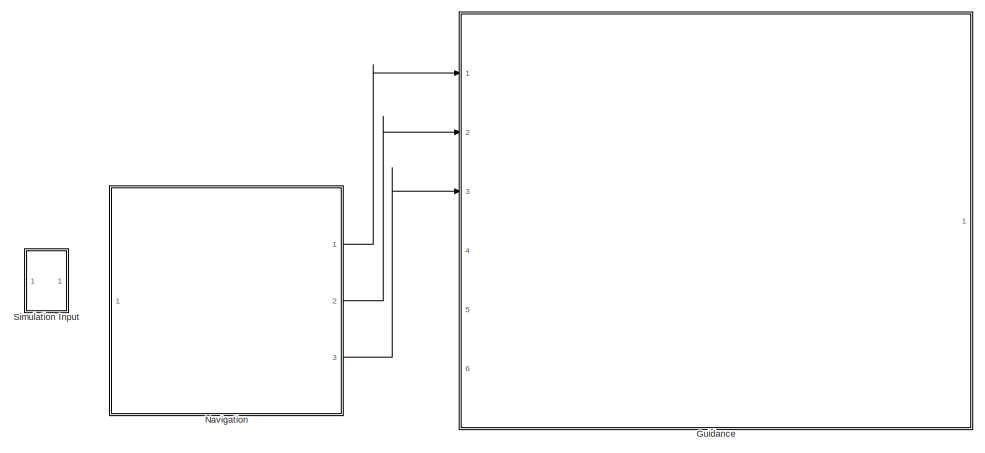
[diagram: root canvas - part 1/2, top left region]
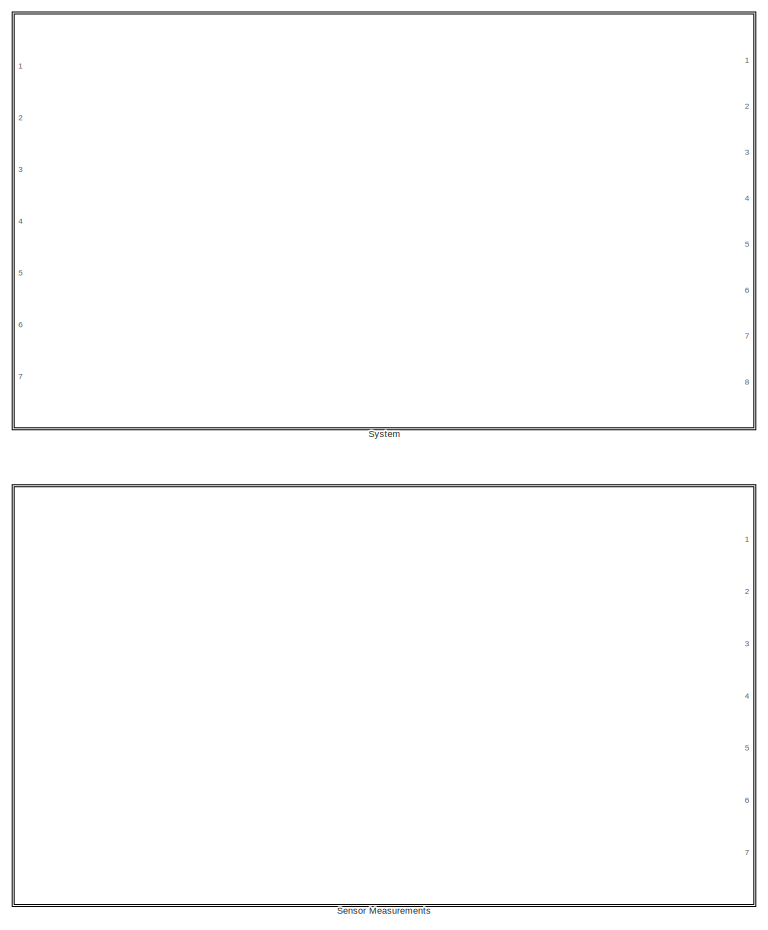
[diagram: root canvas - part 2/2, right side, full height]
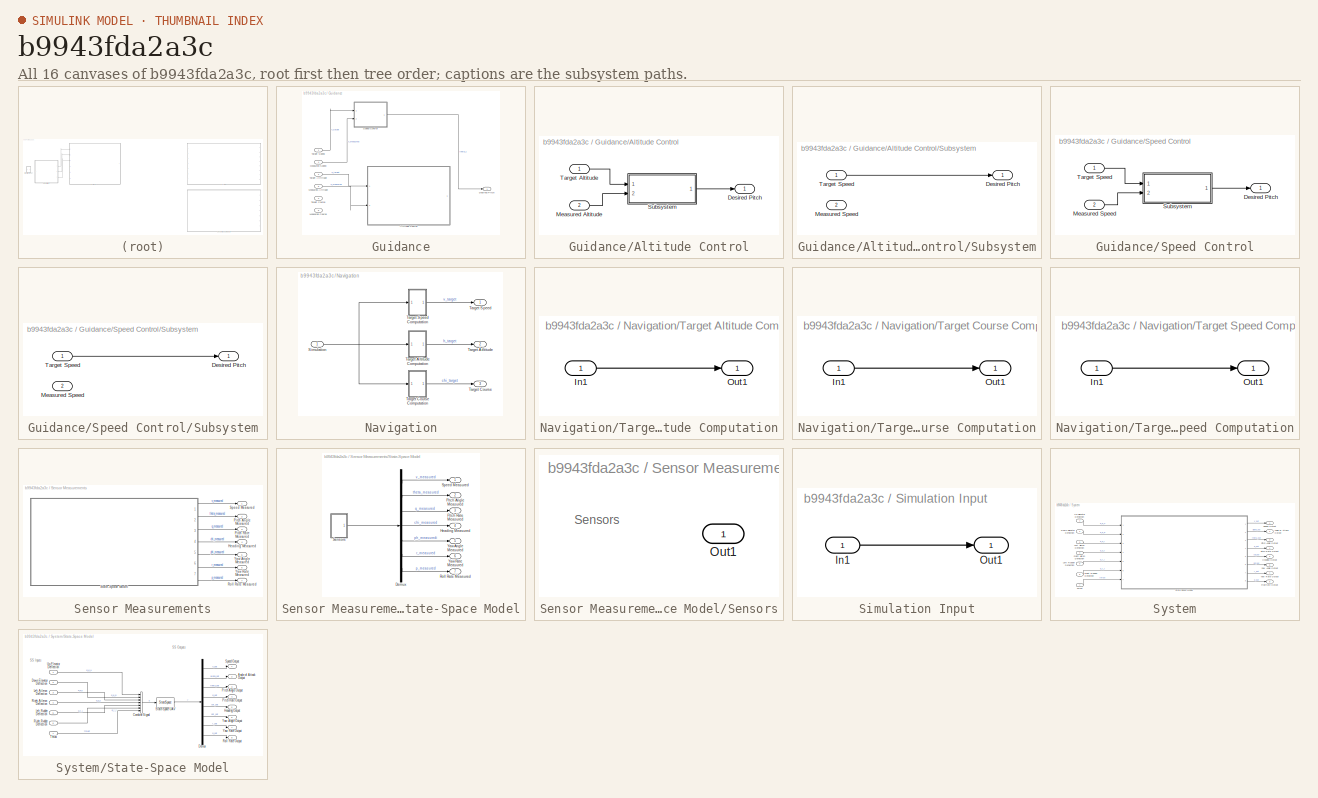
[diagram: thumbnail index - all 16 canvases of the model, root first then tree order]
MODEL slx_b9943fda2a3c
KIND model
CONFIG AbsTol = auto
CONFIG EnableMultiTasking = off
CONFIG FixedStep = auto
CONFIG MaxStep = auto
CONFIG MinStep = auto
CONFIG RelTol = 1e-3
CONFIG SampleTimeConstraint = Unconstrained
CONFIG SolverName = VariableStepAuto
CONFIG StartTime = 0.0
CONFIG StopTime = 10.0
BLOCK [SubSystem] Guidance
  Ports = [6, 1]
  RequestExecContextInheritance = off
BLOCK [SubSystem] Guidance/Altitude Control
  Ports = [2, 1]
  RequestExecContextInheritance = off
BLOCK [Outport] Guidance/Altitude Control/Desired Pitch
BLOCK [Inport] Guidance/Altitude Control/Measured Altitude
  Port = 2
BLOCK [SubSystem] Guidance/Altitude Control/Subsystem
  Ports = [2, 1]
  RequestExecContextInheritance = off
BLOCK [Outport] Guidance/Altitude Control/Subsystem/Desired Pitch
BLOCK [Inport] Guidance/Altitude Control/Subsystem/Measured Speed
  Port = 2
BLOCK [Inport] Guidance/Altitude Control/Subsystem/Target Speed
BLOCK [Inport] Guidance/Altitude Control/Target Altitude
BLOCK [Outport] Guidance/Desired Pitch
BLOCK [Inport] Guidance/Measured Altitude
  Port = 5
BLOCK [Inport] Guidance/Measured Course
  Port = 6
BLOCK [Inport] Guidance/Measured Speed
  Port = 4
BLOCK [SubSystem] Guidance/Speed Control
  Ports = [2, 1]
  RequestExecContextInheritance = off
BLOCK [Outport] Guidance/Speed Control/Desired Pitch
BLOCK [Inport] Guidance/Speed Control/Measured Speed
  Port = 2
BLOCK [SubSystem] Guidance/Speed Control/Subsystem
  Ports = [2, 1]
  RequestExecContextInheritance = off
BLOCK [Outport] Guidance/Speed Control/Subsystem/Desired Pitch
BLOCK [Inport] Guidance/Speed Control/Subsystem/Measured Speed
  Port = 2
BLOCK [Inport] Guidance/Speed Control/Subsystem/Target Speed
BLOCK [Inport] Guidance/Speed Control/Target Speed
BLOCK [Inport] Guidance/Target Atltitude
  Port = 2
BLOCK [Inport] Guidance/Target Course
  Port = 3
BLOCK [Inport] Guidance/Target Speed
BLOCK [SubSystem] Navigation
  Ports = [1, 3]
  RequestExecContextInheritance = off
BLOCK [Inport] Navigation/Simulation
BLOCK [SubSystem] Navigation/Target Altitude Computation
  Ports = [1, 1]
  RequestExecContextInheritance = off
BLOCK [Inport] Navigation/Target Altitude Computation/In1
BLOCK [Outport] Navigation/Target Altitude Computation/Out1
BLOCK [Outport] Navigation/Target Atltitude
  Port = 2
BLOCK [Outport] Navigation/Target Course
  Port = 3
BLOCK [SubSystem] Navigation/Target Course Computation
  Ports = [1, 1]
  RequestExecContextInheritance = off
BLOCK [Inport] Navigation/Target Course Computation/In1
BLOCK [Outport] Navigation/Target Course Computation/Out1
BLOCK [Outport] Navigation/Target Speed
BLOCK [SubSystem] Navigation/Target Speed Computation
  Ports = [1, 1]
  RequestExecContextInheritance = off
BLOCK [Inport] Navigation/Target Speed Computation/In1
BLOCK [Outport] Navigation/Target Speed Computation/Out1
BLOCK [SubSystem] Sensor Measurements
  Ports = [0, 7]
  RequestExecContextInheritance = off
BLOCK [Outport] Sensor Measurements/Heading Measured
  Port = 4
BLOCK [Outport] Sensor Measurements/Pitch Angle Measured
  Port = 2
BLOCK [Outport] Sensor Measurements/Pitch Rate Measured
  Port = 3
BLOCK [Outport] Sensor Measurements/Roll Rate Measured
  Port = 7
BLOCK [Outport] Sensor Measurements/Speed Measured
BLOCK [SubSystem] Sensor Measurements/State-Space Model
  Ports = [0, 7]
  RequestExecContextInheritance = off
BLOCK [Demux] Sensor Measurements/State-Space Model/Demux
  Outputs = 7
  Ports = [1, 7]
BLOCK [Outport] Sensor Measurements/State-Space Model/Heading Measured
  Port = 4
BLOCK [Outport] Sensor Measurements/State-Space Model/Pitch Angle Measured
  Port = 2
BLOCK [Outport] Sensor Measurements/State-Space Model/Pitch Rate Measured
  Port = 3
BLOCK [Outport] Sensor Measurements/State-Space Model/Roll Rate Measured
  Port = 7
BLOCK [SubSystem] Sensor Measurements/State-Space Model/Sensors
  Ports = [0, 1]
  RequestExecContextInheritance = off
BLOCK [Outport] Sensor Measurements/State-Space Model/Sensors/Out1
BLOCK [Outport] Sensor Measurements/State-Space Model/Speed Measured
BLOCK [Outport] Sensor Measurements/State-Space Model/Yaw Angle Measured
  Port = 5
BLOCK [Outport] Sensor Measurements/State-Space Model/Yaw Rate Measured
  Port = 6
BLOCK [Outport] Sensor Measurements/Yaw Angle Measured
  Port = 5
BLOCK [Outport] Sensor Measurements/Yaw Rate Measured
  Port = 6
BLOCK [SubSystem] Simulation Input
  Ports = [1, 1]
  RequestExecContextInheritance = off
BLOCK [Inport] Simulation Input/In1
BLOCK [Outport] Simulation Input/Out1
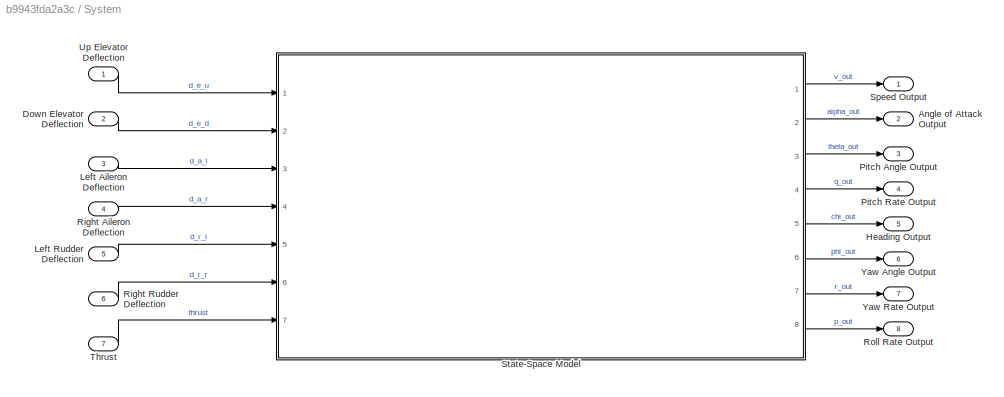
BLOCK [SubSystem] System
  Ports = [7, 8]
  RequestExecContextInheritance = off
BLOCK [Outport] System/Angle of Attack Output
  Port = 2
BLOCK [Inport] System/Down Elevator Deflection
  Port = 2
BLOCK [Outport] System/Heading Output
  Port = 5
BLOCK [Inport] System/Left Aileron Deflection
  Port = 3
BLOCK [Inport] System/Left Rudder Deflection
  Port = 5
BLOCK [Outport] System/Pitch Angle Output
  Port = 3
BLOCK [Outport] System/Pitch Rate Output
  Port = 4
BLOCK [Inport] System/Right Aileron Deflection
  Port = 4
BLOCK [Inport] System/Right Rudder Deflection
  Port = 6
BLOCK [Outport] System/Roll Rate Output
  Port = 8
BLOCK [Outport] System/Speed Output
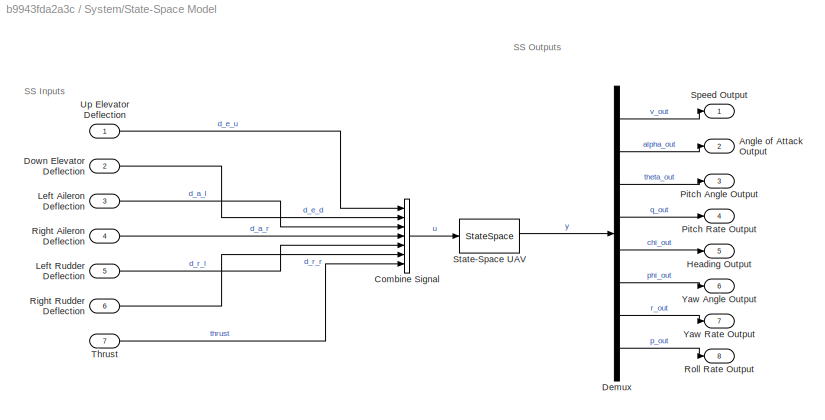
BLOCK [SubSystem] System/State-Space Model
  Ports = [7, 8]
  RequestExecContextInheritance = off
BLOCK [Outport] System/State-Space Model/Angle of Attack Output
  Port = 2
BLOCK [Concatenate] System/State-Space Model/Combine Signal
  NumInputs = 7
  Ports = [7, 1]
BLOCK [Demux] System/State-Space Model/Demux
  Outputs = 8
  Ports = [1, 8]
BLOCK [Inport] System/State-Space Model/Down Elevator Deflection
  Port = 2
BLOCK [Outport] System/State-Space Model/Heading Output
  Port = 5
BLOCK [Inport] System/State-Space Model/Left Aileron Deflection
  Port = 3
BLOCK [Inport] System/State-Space Model/Left Rudder Deflection
  Port = 5
BLOCK [Outport] System/State-Space Model/Pitch Angle Output
  Port = 3
BLOCK [Outport] System/State-Space Model/Pitch Rate Output
  Port = 4
BLOCK [Inport] System/State-Space Model/Right Aileron Deflection
  Port = 4
BLOCK [Inport] System/State-Space Model/Right Rudder Deflection
  Port = 6
BLOCK [Outport] System/State-Space Model/Roll Rate Output
  Port = 8
BLOCK [Outport] System/State-Space Model/Speed Output
BLOCK [StateSpace] System/State-Space Model/State-Space UAV
  InitialCondition = 0
  Ports = [1, 1]
BLOCK [Inport] System/State-Space Model/Thrust
  Port = 7
BLOCK [Inport] System/State-Space Model/Up Elevator Deflection
BLOCK [Outport] System/State-Space Model/Yaw Angle Output
  Port = 6
BLOCK [Outport] System/State-Space Model/Yaw Rate Output
  Port = 7
BLOCK [Inport] System/Thrust
  Port = 7
BLOCK [Inport] System/Up Elevator Deflection
BLOCK [Outport] System/Yaw Angle Output
  Port = 6
BLOCK [Outport] System/Yaw Rate Output
  Port = 7
ANNOTATION Sensor Measurements/State-Space Model/Sensors: Sensors
ANNOTATION System/State-Space Model: SS Inputs
ANNOTATION System/State-Space Model: SS Outputs
LINE Guidance/Altitude Control/Measured Altitude:1 -> Guidance/Altitude Control/Subsystem:2
LINE Guidance/Altitude Control/Subsystem/Target Speed:1 -> Guidance/Altitude Control/Subsystem/Desired Pitch:1
LINE Guidance/Altitude Control/Subsystem:1 -> Guidance/Altitude Control/Desired Pitch:1
LINE Guidance/Altitude Control/Target Altitude:1 -> Guidance/Altitude Control/Subsystem:1
LINE Guidance/Measured Altitude:1 -> Guidance/Altitude Control:2
LINE Guidance/Measured Speed:1 -> Guidance/Speed Control:2
LINE Guidance/Speed Control/Measured Speed:1 -> Guidance/Speed Control/Subsystem:2
LINE Guidance/Speed Control/Subsystem/Target Speed:1 -> Guidance/Speed Control/Subsystem/Desired Pitch:1
LINE Guidance/Speed Control/Subsystem:1 -> Guidance/Speed Control/Desired Pitch:1
LINE Guidance/Speed Control/Target Speed:1 -> Guidance/Speed Control/Subsystem:1
LINE Guidance/Speed Control:1 -> Guidance/Desired Pitch:1
LINE Guidance/Target Atltitude:1 -> Guidance/Altitude Control:1
LINE Guidance/Target Speed:1 -> Guidance/Speed Control:1
NET Navigation/Simulation:1 -> Navigation/Target Altitude Computation:1, Navigation/Target Course Computation:1, Navigation/Target Speed Computation:1
LINE Navigation/Target Altitude Computation/In1:1 -> Navigation/Target Altitude Computation/Out1:1
LINE Navigation/Target Altitude Computation:1 -> Navigation/Target Atltitude:1
LINE Navigation/Target Course Computation/In1:1 -> Navigation/Target Course Computation/Out1:1
LINE Navigation/Target Course Computation:1 -> Navigation/Target Course:1
LINE Navigation/Target Speed Computation/In1:1 -> Navigation/Target Speed Computation/Out1:1
LINE Navigation/Target Speed Computation:1 -> Navigation/Target Speed:1
LINE Navigation:1 -> Guidance:1
LINE Navigation:2 -> Guidance:2
LINE Navigation:3 -> Guidance:3
LINE Sensor Measurements/State-Space Model/Demux:1 -> Sensor Measurements/State-Space Model/Speed Measured:1
LINE Sensor Measurements/State-Space Model/Demux:2 -> Sensor Measurements/State-Space Model/Pitch Angle Measured:1
LINE Sensor Measurements/State-Space Model/Demux:3 -> Sensor Measurements/State-Space Model/Pitch Rate Measured:1
LINE Sensor Measurements/State-Space Model/Demux:4 -> Sensor Measurements/State-Space Model/Heading Measured:1
LINE Sensor Measurements/State-Space Model/Demux:5 -> Sensor Measurements/State-Space Model/Yaw Angle Measured:1
LINE Sensor Measurements/State-Space Model/Demux:6 -> Sensor Measurements/State-Space Model/Yaw Rate Measured:1
LINE Sensor Measurements/State-Space Model/Demux:7 -> Sensor Measurements/State-Space Model/Roll Rate Measured:1
LINE Sensor Measurements/State-Space Model/Sensors:1 -> Sensor Measurements/State-Space Model/Demux:1
LINE Sensor Measurements/State-Space Model:1 -> Sensor Measurements/Speed Measured:1
LINE Sensor Measurements/State-Space Model:2 -> Sensor Measurements/Pitch Angle Measured:1
LINE Sensor Measurements/State-Space Model:3 -> Sensor Measurements/Pitch Rate Measured:1
LINE Sensor Measurements/State-Space Model:4 -> Sensor Measurements/Heading Measured:1
LINE Sensor Measurements/State-Space Model:5 -> Sensor Measurements/Yaw Angle Measured:1
LINE Sensor Measurements/State-Space Model:6 -> Sensor Measurements/Yaw Rate Measured:1
LINE Sensor Measurements/State-Space Model:7 -> Sensor Measurements/Roll Rate Measured:1
LINE Simulation Input/In1:1 -> Simulation Input/Out1:1
LINE System/Down Elevator Deflection:1 -> System/State-Space Model:2
LINE System/Left Aileron Deflection:1 -> System/State-Space Model:3
LINE System/Left Rudder Deflection:1 -> System/State-Space Model:5
LINE System/Right Aileron Deflection:1 -> System/State-Space Model:4
LINE System/Right Rudder Deflection:1 -> System/State-Space Model:6
LINE System/State-Space Model/Combine Signal:1 -> System/State-Space Model/State-Space UAV:1
LINE System/State-Space Model/Demux:1 -> System/State-Space Model/Speed Output:1
LINE System/State-Space Model/Demux:2 -> System/State-Space Model/Angle of Attack Output:1
LINE System/State-Space Model/Demux:3 -> System/State-Space Model/Pitch Angle Output:1
LINE System/State-Space Model/Demux:4 -> System/State-Space Model/Pitch Rate Output:1
LINE System/State-Space Model/Demux:5 -> System/State-Space Model/Heading Output:1
LINE System/State-Space Model/Demux:6 -> System/State-Space Model/Yaw Angle Output:1
LINE System/State-Space Model/Demux:7 -> System/State-Space Model/Yaw Rate Output:1
LINE System/State-Space Model/Demux:8 -> System/State-Space Model/Roll Rate Output:1
LINE System/State-Space Model/Down Elevator Deflection:1 -> System/State-Space Model/Combine Signal:2
LINE System/State-Space Model/Left Aileron Deflection:1 -> System/State-Space Model/Combine Signal:3
LINE System/State-Space Model/Left Rudder Deflection:1 -> System/State-Space Model/Combine Signal:5
LINE System/State-Space Model/Right Aileron Deflection:1 -> System/State-Space Model/Combine Signal:4
LINE System/State-Space Model/Right Rudder Deflection:1 -> System/State-Space Model/Combine Signal:6
LINE System/State-Space Model/State-Space UAV:1 -> System/State-Space Model/Demux:1
LINE System/State-Space Model/Thrust:1 -> System/State-Space Model/Combine Signal:7
LINE System/State-Space Model/Up Elevator Deflection:1 -> System/State-Space Model/Combine Signal:1
LINE System/State-Space Model:1 -> System/Speed Output:1
LINE System/State-Space Model:2 -> System/Angle of Attack Output:1
LINE System/State-Space Model:3 -> System/Pitch Angle Output:1
LINE System/State-Space Model:4 -> System/Pitch Rate Output:1
LINE System/State-Space Model:5 -> System/Heading Output:1
LINE System/State-Space Model:6 -> System/Yaw Angle Output:1
LINE System/State-Space Model:7 -> System/Yaw Rate Output:1
LINE System/State-Space Model:8 -> System/Roll Rate Output:1
LINE System/Thrust:1 -> System/State-Space Model:7
LINE System/Up Elevator Deflection:1 -> System/State-Space Model:1
note: NET lines group one-source signal fan-out (src -> all destinations, sorted); 1:1 wires keep LINE
